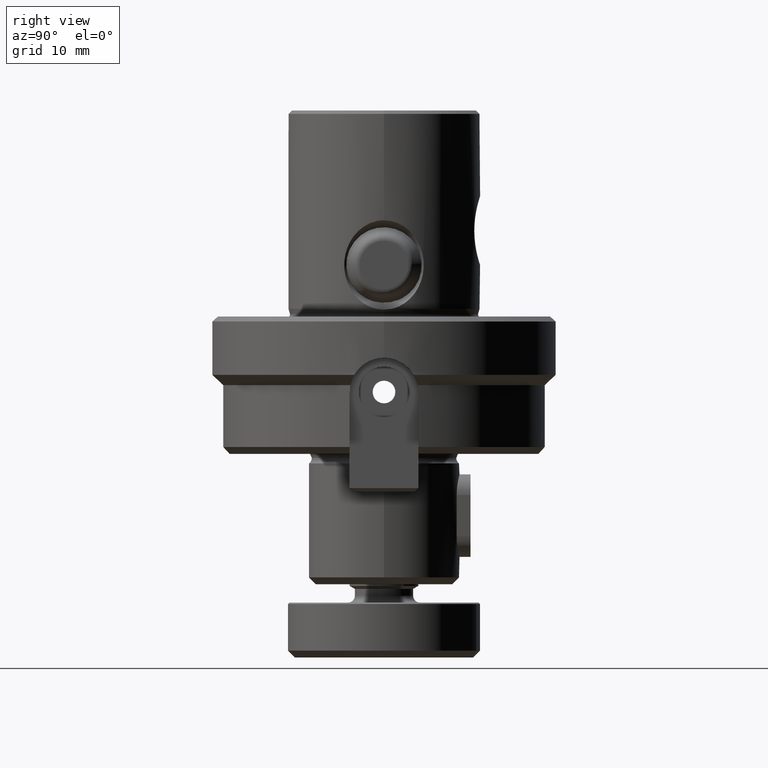
[diagram: clean part render]
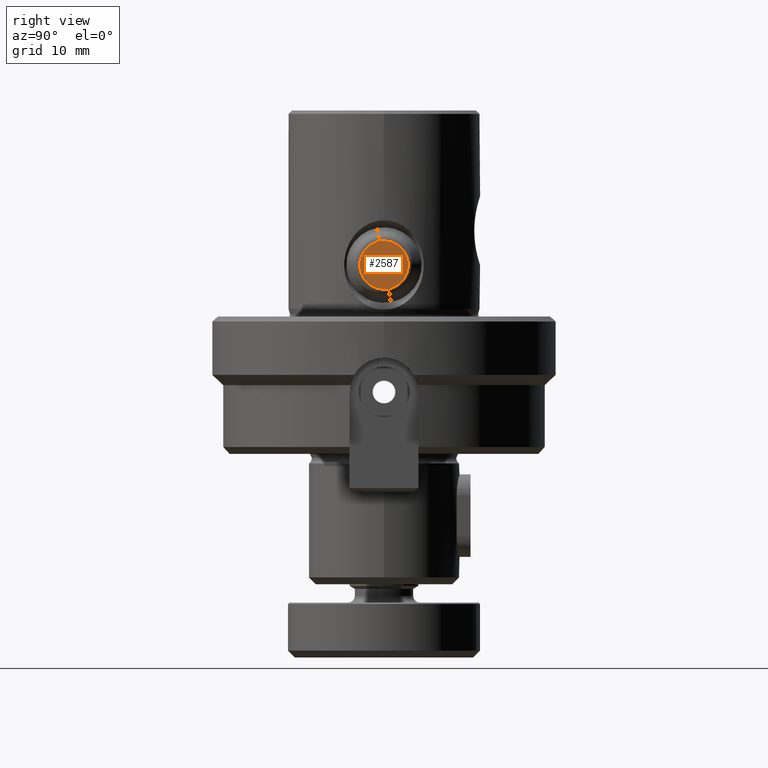
[diagram: same view with one face highlighted and labeled with its STEP entity id]
A machine part, right view. The second image highlights one B-rep face of the part: STEP entity #2587.
In plain terms, the highlighted planar face has unit normal (-1, -0, -0).
Its self-contained STEP definition (entity closure, byte-faithful):
#1189=EDGE_CURVE('NONE',#1481,#3089,#3336,.T.);
#1481=VERTEX_POINT('NONE',#3665);
#2007=EDGE_CURVE('NONE',#3089,#1481,#4250,.T.);
#2587=ADVANCED_FACE('NONE',(#4901),#4902,.F.);
#3089=VERTEX_POINT('NONE',#5457);
#3336=CIRCLE('',#5772,3.53700908475525);
#3665=CARTESIAN_POINT('',(15.0915532887976,0.650952020043689,4.02340759748252));
#4250=CIRCLE('',#7382,3.53700908475525);
#4901=FACE_OUTER_BOUND('',#8530,.T.);
#4902=PLANE('',#8531);
#5457=CARTESIAN_POINT('',(15.0915532887976,-0.650952020043966,10.9765924025174));
#5772=AXIS2_PLACEMENT_3D('',#9862,#9863,#9864);
#7382=AXIS2_PLACEMENT_3D('',#10973,#10974,#10975);
#8530=EDGE_LOOP('',(#11747,#11748));
#8531=AXIS2_PLACEMENT_3D('',#11749,#11750,#11751);
#9862=CARTESIAN_POINT('',(15.0915532887976,-1.39129822607221E-013,7.49999999999997));
#9863=DIRECTION('',(1.0,-1.68428685880731E-016,1.40804581357677E-015));
#9864=DIRECTION('',(1.41499222966548E-015,0.184040245429246,-0.982918708776236));
#10973=CARTESIAN_POINT('',(15.0915532887976,-1.39129822607221E-013,7.49999999999997));
#10974=DIRECTION('',(1.0,-1.68428685880731E-016,1.40804581357677E-015));
#10975=DIRECTION('',(1.41499222966548E-015,0.184040245429246,-0.982918708776236));
#11747=ORIENTED_EDGE('',*,*,#1189,.T.);
#11748=ORIENTED_EDGE('',*,*,#2007,.T.);
#11749=CARTESIAN_POINT('',(15.0915532887976,-1.39129822607221E-013,7.49999999999997));
#11750=DIRECTION('',(-1.0,-1.20961172059642E-017,-4.43902313668894E-016));
#11751=DIRECTION('',(4.34093716594886E-016,0.184040245429247,-0.982918708776236));